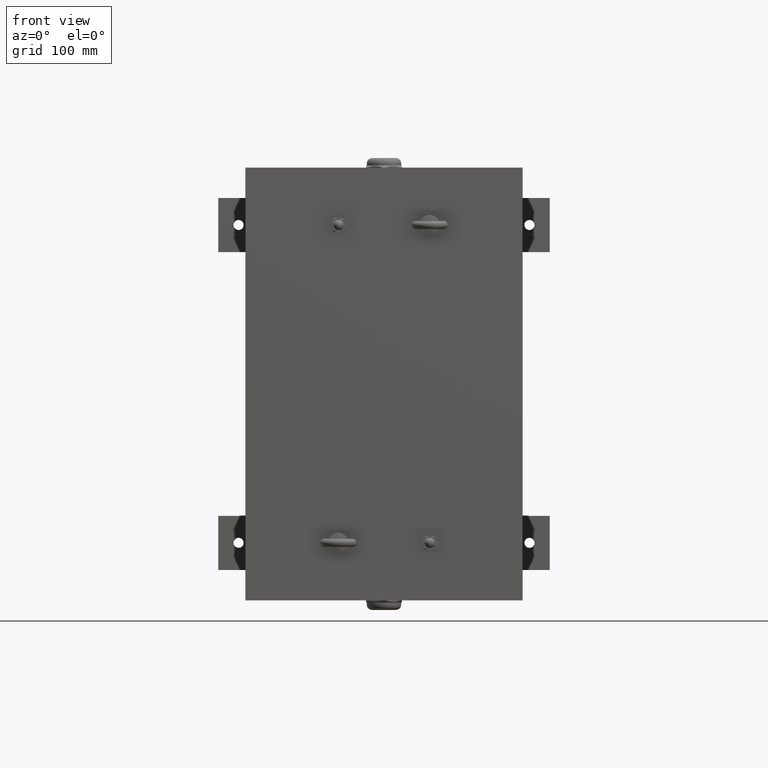
[diagram: clean part render]
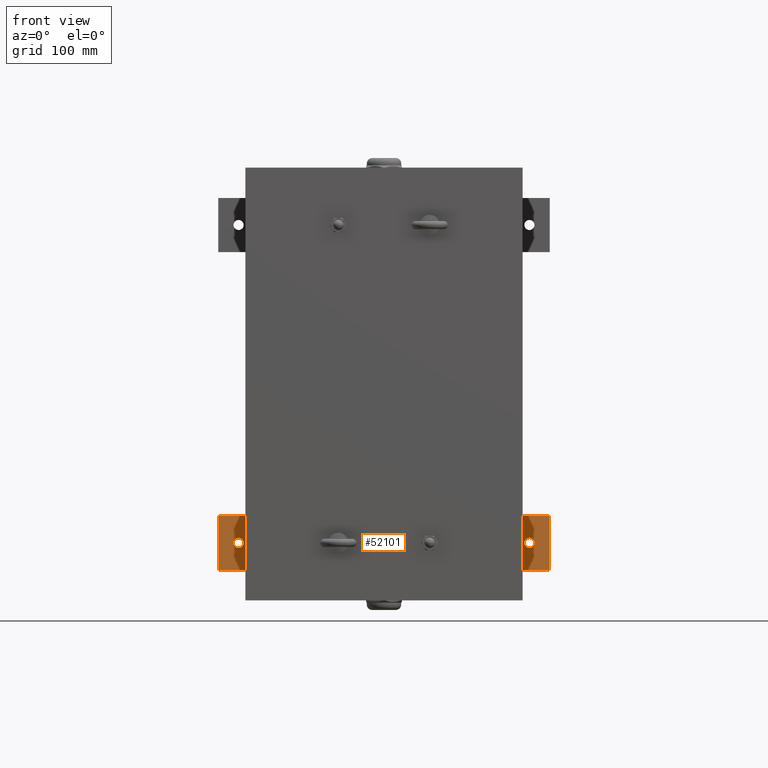
[diagram: same view with one face highlighted and labeled with its STEP entity id]
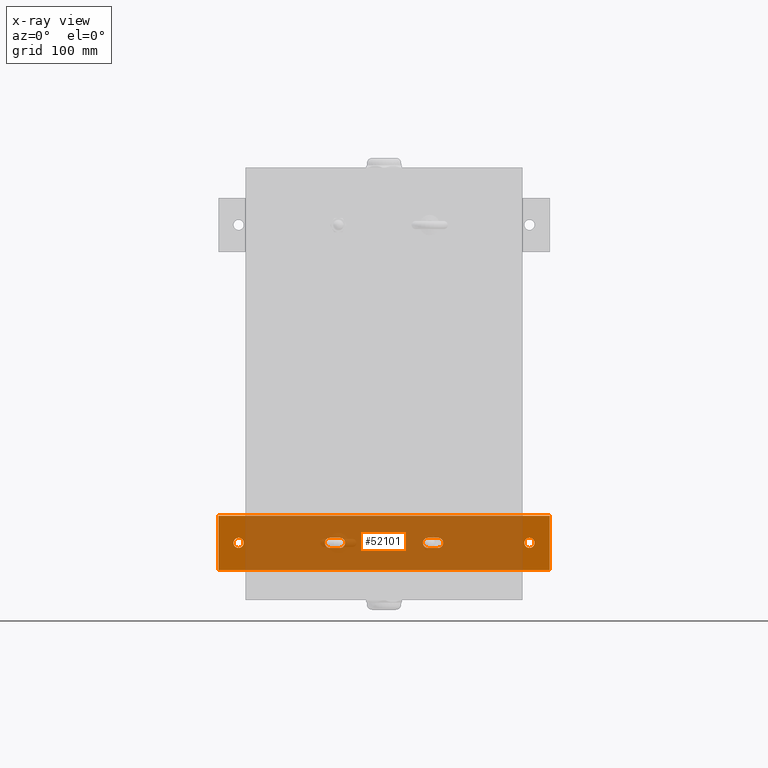
[diagram: x-ray of the same camera — body ghosted, the highlighted face saturated]
A machine part, front view. The second image highlights one B-rep face of the part: STEP entity #52101.
The next image is the same camera in x-ray: the body ghosted, the highlighted face saturated — about 84% of this face is hidden behind the body in this view.
In plain terms, the highlighted planar face has unit normal (-0, 1, -0).
Its self-contained STEP definition (entity closure, byte-faithful):
#1510=FACE_BOUND('',#14756,.T.);
#1511=FACE_BOUND('',#14757,.T.);
#1512=FACE_BOUND('',#14758,.T.);
#1513=FACE_BOUND('',#14759,.T.);
#7364=CIRCLE('',#57337,7.4999999999999);
#7365=CIRCLE('',#57340,7.4999999999999);
#7366=CIRCLE('',#57343,7.4999999999999);
#7367=CIRCLE('',#57346,7.4999999999999);
#7368=CIRCLE('',#57348,7.5);
#7369=CIRCLE('',#57350,7.5);
#10924=FACE_OUTER_BOUND('',#14755,.T.);
#14755=EDGE_LOOP('',(#48050,#48051,#48052,#48053));
#14756=EDGE_LOOP('',(#48054));
#14757=EDGE_LOOP('',(#48055));
#14758=EDGE_LOOP('',(#48056,#48057,#48058,#48059));
#14759=EDGE_LOOP('',(#48060,#48061,#48062,#48063));
#18729=LINE('',#89690,#22682);
#18732=LINE('',#89696,#22685);
#18736=LINE('',#89706,#22689);
#18740=LINE('',#89715,#22693);
#18742=LINE('',#89721,#22695);
#18745=LINE('',#89734,#22698);
#18748=LINE('',#89739,#22701);
#18749=LINE('',#89741,#22702);
#22682=VECTOR('',#71199,10.);
#22685=VECTOR('',#71204,10.);
#22689=VECTOR('',#71214,10.);
#22693=VECTOR('',#71224,10.);
#22695=VECTOR('',#71232,10.);
#22698=VECTOR('',#71249,10.);
#22701=VECTOR('',#71254,10.);
#22702=VECTOR('',#71257,10.);
#27146=VERTEX_POINT('',#89687);
#27147=VERTEX_POINT('',#89689);
#27148=VERTEX_POINT('',#89693);
#27149=VERTEX_POINT('',#89695);
#27150=VERTEX_POINT('',#89699);
#27151=VERTEX_POINT('',#89703);
#27152=VERTEX_POINT('',#89705);
#27153=VERTEX_POINT('',#89709);
#27154=VERTEX_POINT('',#89713);
#27155=VERTEX_POINT('',#89719);
#27156=VERTEX_POINT('',#89725);
#27157=VERTEX_POINT('',#89729);
#27158=VERTEX_POINT('',#89733);
#27159=VERTEX_POINT('',#89737);
#34129=EDGE_CURVE('',#27146,#27147,#18729,.T.);
#34132=EDGE_CURVE('',#27148,#27149,#18732,.T.);
#34135=EDGE_CURVE('',#27150,#27148,#7364,.T.);
#34137=EDGE_CURVE('',#27151,#27152,#18736,.T.);
#34140=EDGE_CURVE('',#27153,#27151,#7365,.T.);
#34142=EDGE_CURVE('',#27154,#27150,#18740,.T.);
#34143=EDGE_CURVE('',#27149,#27154,#7366,.T.);
#34145=EDGE_CURVE('',#27155,#27153,#18742,.T.);
#34146=EDGE_CURVE('',#27152,#27155,#7367,.T.);
#34148=EDGE_CURVE('',#27156,#27156,#7368,.T.);
#34150=EDGE_CURVE('',#27157,#27157,#7369,.T.);
#34151=EDGE_CURVE('',#27158,#27146,#18745,.T.);
#34154=EDGE_CURVE('',#27159,#27158,#18748,.T.);
#34155=EDGE_CURVE('',#27147,#27159,#18749,.T.);
#48050=ORIENTED_EDGE('',*,*,#34155,.F.);
#48051=ORIENTED_EDGE('',*,*,#34129,.F.);
#48052=ORIENTED_EDGE('',*,*,#34151,.F.);
#48053=ORIENTED_EDGE('',*,*,#34154,.F.);
#48054=ORIENTED_EDGE('',*,*,#34150,.F.);
#48055=ORIENTED_EDGE('',*,*,#34148,.F.);
#48056=ORIENTED_EDGE('',*,*,#34140,.F.);
#48057=ORIENTED_EDGE('',*,*,#34145,.F.);
#48058=ORIENTED_EDGE('',*,*,#34146,.F.);
#48059=ORIENTED_EDGE('',*,*,#34137,.F.);
#48060=ORIENTED_EDGE('',*,*,#34135,.F.);
#48061=ORIENTED_EDGE('',*,*,#34142,.F.);
#48062=ORIENTED_EDGE('',*,*,#34143,.F.);
#48063=ORIENTED_EDGE('',*,*,#34132,.F.);
#49600=PLANE('',#57354);
#52101=ADVANCED_FACE('',(#10924,#1510,#1511,#1512,#1513),#49600,.F.);
#57337=AXIS2_PLACEMENT_3D('',#89701,#71209,#71210);
#57340=AXIS2_PLACEMENT_3D('',#89711,#71219,#71220);
#57343=AXIS2_PLACEMENT_3D('',#89717,#71227,#71228);
#57346=AXIS2_PLACEMENT_3D('',#89723,#71235,#71236);
#57348=AXIS2_PLACEMENT_3D('',#89727,#71240,#71241);
#57350=AXIS2_PLACEMENT_3D('',#89731,#71245,#71246);
#57354=AXIS2_PLACEMENT_3D('',#89742,#71258,#71259);
#71199=DIRECTION('',(-1.,0.,3.57309064608172E-33));
#71204=DIRECTION('',(2.96059473233375E-16,0.,1.));
#71209=DIRECTION('center_axis',(0.,-1.,0.));
#71210=DIRECTION('ref_axis',(-1.,0.,0.));
#71214=DIRECTION('',(8.88178419700125E-16,0.,1.));
#71219=DIRECTION('center_axis',(0.,-1.,0.));
#71220=DIRECTION('ref_axis',(-1.,0.,0.));
#71224=DIRECTION('',(-5.9211894646675E-16,0.,-1.));
#71227=DIRECTION('center_axis',(0.,-1.,0.));
#71228=DIRECTION('ref_axis',(1.,0.,0.));
#71232=DIRECTION('',(5.9211894646675E-16,0.,-1.));
#71235=DIRECTION('center_axis',(0.,-1.,0.));
#71236=DIRECTION('ref_axis',(1.,0.,0.));
#71240=DIRECTION('center_axis',(0.,-1.,0.));
#71241=DIRECTION('ref_axis',(1.,0.,0.));
#71245=DIRECTION('center_axis',(0.,-1.,0.));
#71246=DIRECTION('ref_axis',(1.,0.,0.));
#71249=DIRECTION('',(-2.15506103523763E-16,0.,-1.));
#71254=DIRECTION('',(1.,0.,0.));
#71257=DIRECTION('',(1.63134811781656E-16,0.,1.));
#71258=DIRECTION('center_axis',(0.,1.,0.));
#71259=DIRECTION('ref_axis',(0.,0.,1.));
#89687=CARTESIAN_POINT('',(0.,0.,0.));
#89689=CARTESIAN_POINT('',(-80.,0.,2.85847251686537E-31));
#89690=CARTESIAN_POINT('',(0.,0.,0.));
#89693=CARTESIAN_POINT('',(-32.5,0.,165.));
#89695=CARTESIAN_POINT('',(-32.5,0.,180.));
#89696=CARTESIAN_POINT('',(-32.5,0.,165.));
#89699=CARTESIAN_POINT('',(-47.5,0.,165.));
#89701=CARTESIAN_POINT('Origin',(-40.,0.,165.));
#89703=CARTESIAN_POINT('',(-32.5,0.,310.));
#89705=CARTESIAN_POINT('',(-32.5,0.,325.));
#89706=CARTESIAN_POINT('',(-32.5,0.,310.));
#89709=CARTESIAN_POINT('',(-47.5,0.,310.));
#89711=CARTESIAN_POINT('Origin',(-40.,0.,310.));
#89713=CARTESIAN_POINT('',(-47.5,0.,180.));
#89715=CARTESIAN_POINT('',(-47.5,0.,180.));
#89717=CARTESIAN_POINT('Origin',(-40.,0.,180.));
#89719=CARTESIAN_POINT('',(-47.5,0.,325.));
#89721=CARTESIAN_POINT('',(-47.5,0.,325.));
#89723=CARTESIAN_POINT('Origin',(-40.,0.,325.));
#89725=CARTESIAN_POINT('',(-47.5,0.,30.));
#89727=CARTESIAN_POINT('Origin',(-40.,0.,30.));
#89729=CARTESIAN_POINT('',(-47.5,0.,460.));
#89731=CARTESIAN_POINT('Origin',(-40.,0.,460.));
#89733=CARTESIAN_POINT('',(1.05597990726644E-13,0.,490.));
#89734=CARTESIAN_POINT('',(1.05597990726644E-13,0.,490.));
#89737=CARTESIAN_POINT('',(-79.9999999999999,0.,490.));
#89739=CARTESIAN_POINT('',(-79.9999999999999,0.,490.));
#89741=CARTESIAN_POINT('',(-80.,0.,2.85847251686537E-31));
#89742=CARTESIAN_POINT('Origin',(-39.9999999999999,0.,245.));